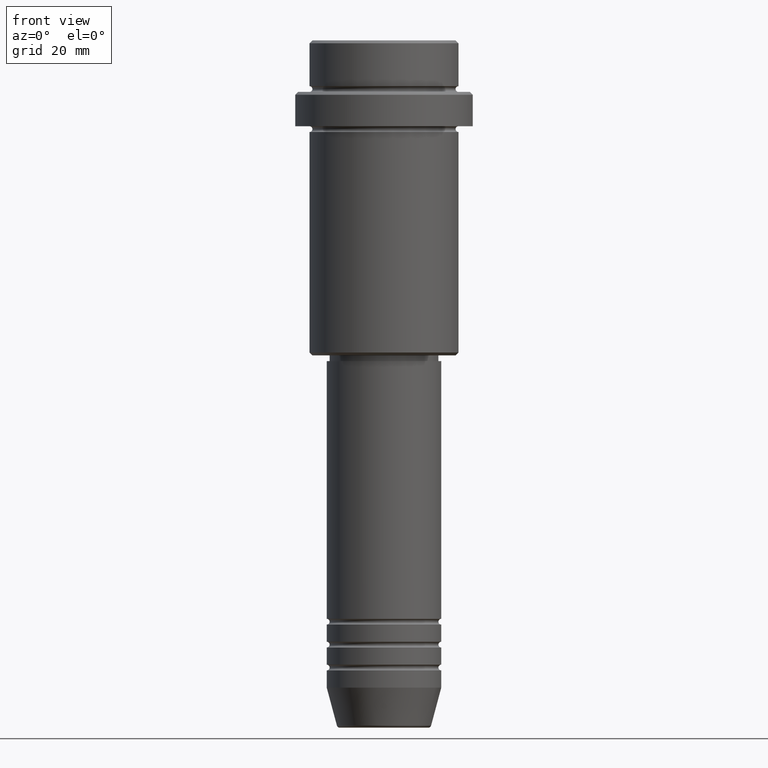
[diagram: clean part render]
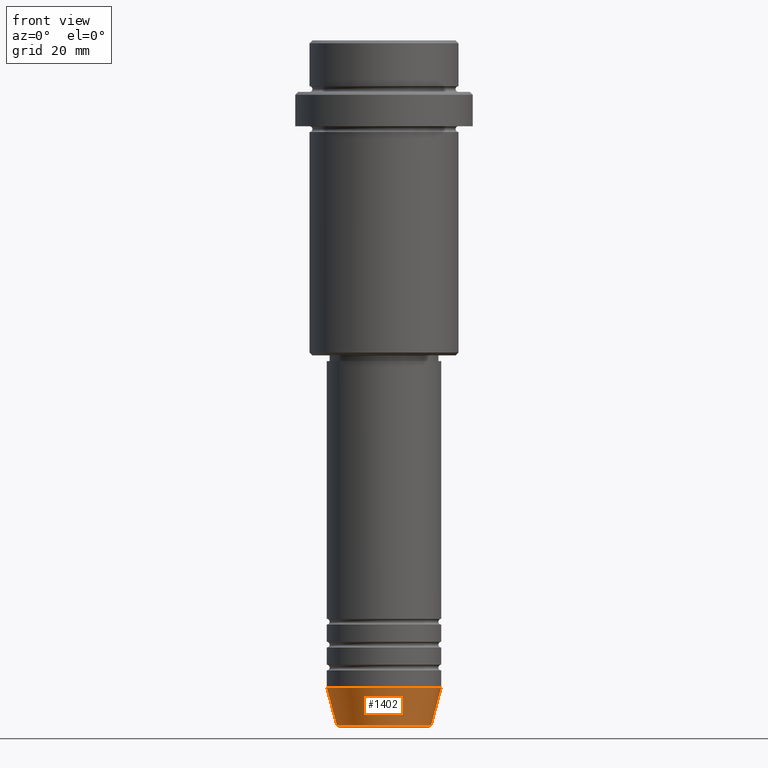
[diagram: same view with one face highlighted and labeled with its STEP entity id]
A machine part, front view. The second image highlights one B-rep face of the part: STEP entity #1402.
In plain terms, the highlighted conical surface has half-angle 15 deg.
Its self-contained STEP definition (entity closure, byte-faithful):
#11 = DIRECTION ( 'NONE',  ( -0.000000000000000000, -0.000000000000000000, 1.000000000000000000 ) ) ;
#42 = AXIS2_PLACEMENT_3D ( 'NONE', #870, #420, #863 ) ;
#130 = CARTESIAN_POINT ( 'NONE',  ( 0.000000000000000000, 0.000000000000000000, -119.6294095225512564 ) ) ;
#163 = CARTESIAN_POINT ( 'NONE',  ( 8.223655072137194821, 0.000000000000000000, -119.6294095225512564 ) ) ;
#197 = CARTESIAN_POINT ( 'NONE',  ( 10.00000000000000000, 0.000000000000000000, -113.0000000000000000 ) ) ;
#254 = CARTESIAN_POINT ( 'NONE',  ( 10.00000000000000000, 0.000000000000000000, -113.0000000000000000 ) ) ;
#262 = ORIENTED_EDGE ( 'NONE', *, *, #637, .F. ) ;
#275 = VECTOR ( 'NONE', #868, 1000.000000000000000 ) ;
#417 = CIRCLE ( 'NONE', #1374, 8.223655072137194821 ) ;
#420 = DIRECTION ( 'NONE',  ( -0.000000000000000000, -0.000000000000000000, 1.000000000000000000 ) ) ;
#482 = CIRCLE ( 'NONE', #42, 10.00000000000000000 ) ;
#488 = ORIENTED_EDGE ( 'NONE', *, *, #995, .F. ) ;
#516 = DIRECTION ( 'NONE',  ( -0.000000000000000000, -0.000000000000000000, 1.000000000000000000 ) ) ;
#636 = LINE ( 'NONE', #1070, #275 ) ;
#637 = EDGE_CURVE ( 'NONE', #699, #939, #482, .T. ) ;
#682 = LINE ( 'NONE', #254, #1332 ) ;
#699 = VERTEX_POINT ( 'NONE', #755 ) ;
#715 = DIRECTION ( 'NONE',  ( 0.2588190451025213501, 0.000000000000000000, 0.9659258262890680902 ) ) ;
#722 = CARTESIAN_POINT ( 'NONE',  ( 0.000000000000000000, 0.000000000000000000, -113.0000000000000000 ) ) ;
#729 = FACE_OUTER_BOUND ( 'NONE', #1251, .T. ) ;
#755 = CARTESIAN_POINT ( 'NONE',  ( -10.00000000000000000, 1.224646799147353256E-15, -113.0000000000000000 ) ) ;
#807 = EDGE_CURVE ( 'NONE', #1232, #825, #417, .T. ) ;
#825 = VERTEX_POINT ( 'NONE', #163 ) ;
#841 = ORIENTED_EDGE ( 'NONE', *, *, #807, .T. ) ;
#863 = DIRECTION ( 'NONE',  ( 1.000000000000000000, 0.000000000000000000, 0.000000000000000000 ) ) ;
#868 = DIRECTION ( 'NONE',  ( -0.2588190451025213501, 3.169619151431772337E-17, 0.9659258262890680902 ) ) ;
#870 = CARTESIAN_POINT ( 'NONE',  ( 0.000000000000000000, 0.000000000000000000, -113.0000000000000000 ) ) ;
#930 = CARTESIAN_POINT ( 'NONE',  ( -8.223655072137194821, 1.115877042642912251E-15, -119.6294095225512564 ) ) ;
#939 = VERTEX_POINT ( 'NONE', #197 ) ;
#995 = EDGE_CURVE ( 'NONE', #1232, #699, #636, .T. ) ;
#1004 = ORIENTED_EDGE ( 'NONE', *, *, #1237, .T. ) ;
#1030 = CONICAL_SURFACE ( 'NONE', #1218, 10.00000000000000000, 0.2617993877991500740 ) ;
#1070 = CARTESIAN_POINT ( 'NONE',  ( -10.00000000000000000, 1.224646799147353256E-15, -113.0000000000000000 ) ) ;
#1134 = DIRECTION ( 'NONE',  ( 1.000000000000000000, 0.000000000000000000, 0.000000000000000000 ) ) ;
#1218 = AXIS2_PLACEMENT_3D ( 'NONE', #722, #516, #1378 ) ;
#1232 = VERTEX_POINT ( 'NONE', #930 ) ;
#1237 = EDGE_CURVE ( 'NONE', #825, #939, #682, .T. ) ;
#1251 = EDGE_LOOP ( 'NONE', ( #488, #841, #1004, #262 ) ) ;
#1332 = VECTOR ( 'NONE', #715, 1000.000000000000000 ) ;
#1374 = AXIS2_PLACEMENT_3D ( 'NONE', #130, #11, #1134 ) ;
#1378 = DIRECTION ( 'NONE',  ( 1.000000000000000000, 0.000000000000000000, 0.000000000000000000 ) ) ;
#1402 = ADVANCED_FACE ( 'NONE', ( #729 ), #1030, .T. ) ;